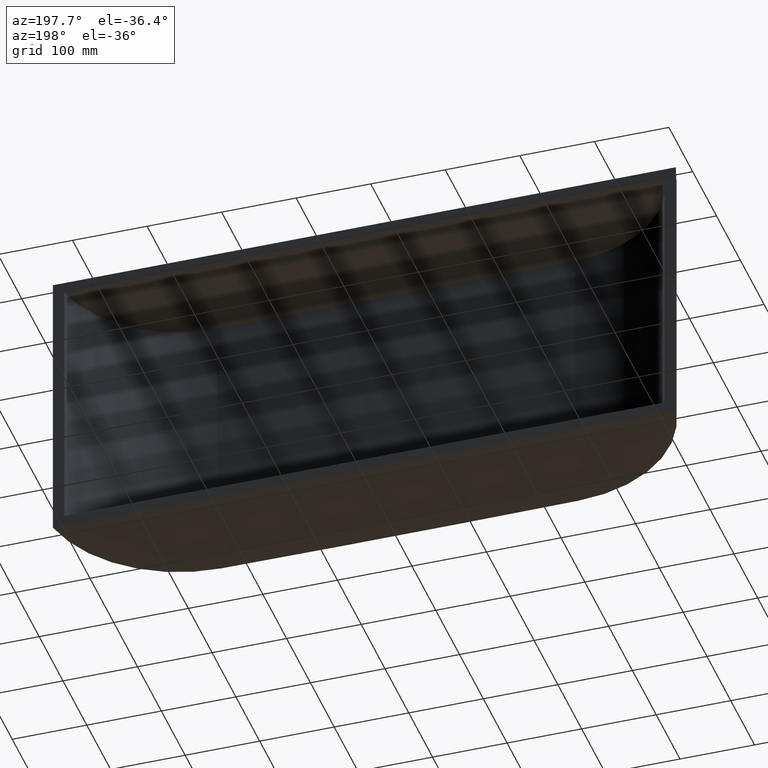
[diagram: clean part render]
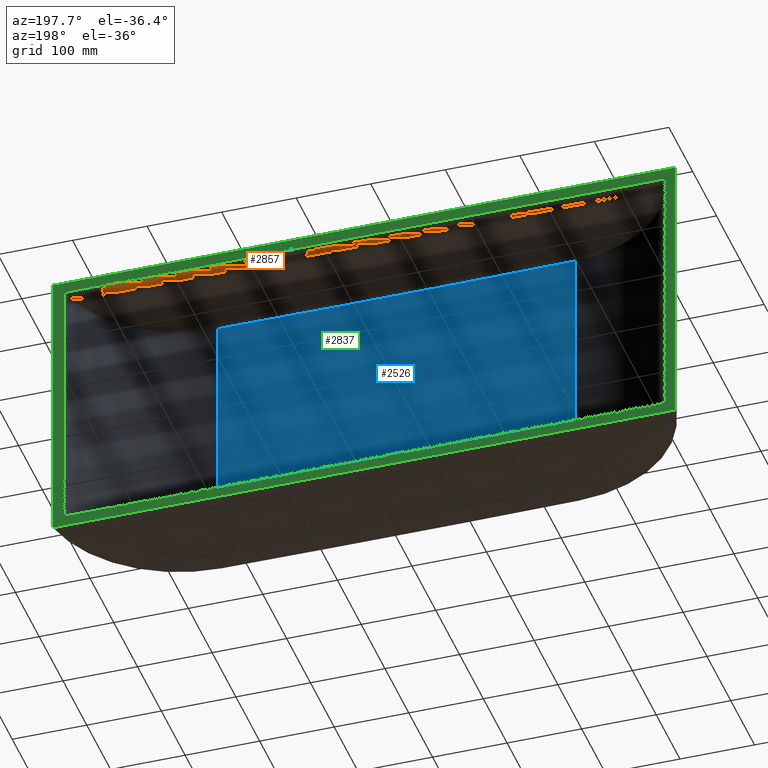
[diagram: same view with three faces highlighted in distinct colors, each labeled with its STEP entity id]
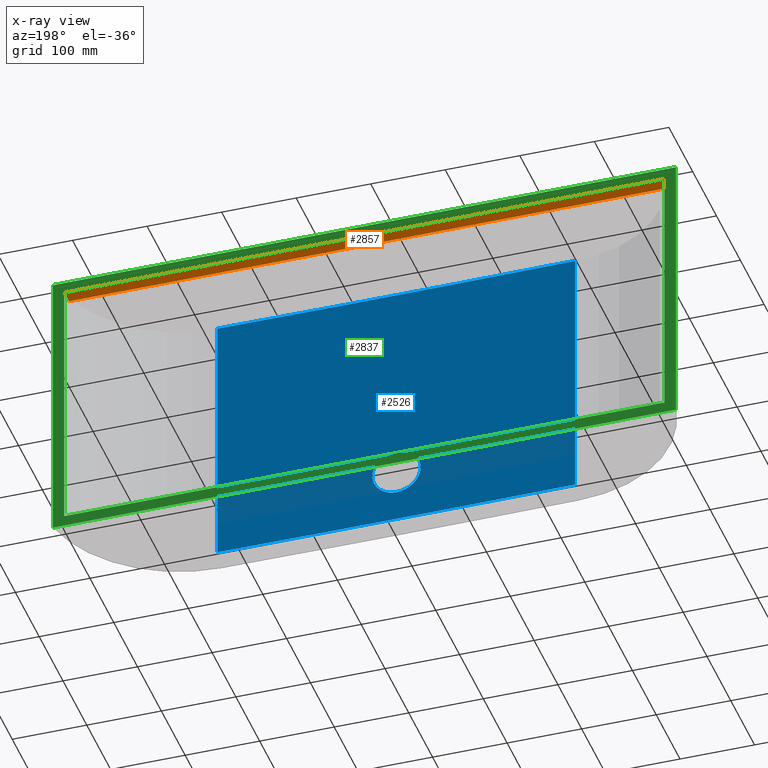
[diagram: x-ray of the same camera — body ghosted, the three highlighted faces saturated]
A machine part, auxiliary view with three faces highlighted in distinct colors.
The next image is the same camera in x-ray (body ghosted, the three faces saturated) — at least one of them is partly hidden behind the body in this view.
Their STEP definitions:

[orange] entity #2857 — the highlighted planar face has unit normal (0, 0, 1).
#7 = VECTOR ( 'NONE', #1568, 1000.000000000000000 ) ;
#31 = ORIENTED_EDGE ( 'NONE', *, *, #1319, .T. ) ;
#82 = ORIENTED_EDGE ( 'NONE', *, *, #763, .F. ) ;
#118 = VERTEX_POINT ( 'NONE', #2418 ) ;
#234 = LINE ( 'NONE', #1080, #2604 ) ;
#281 = EDGE_LOOP ( 'NONE', ( #2308, #82, #1192, #31 ) ) ;
#352 = VERTEX_POINT ( 'NONE', #2541 ) ;
#401 = VERTEX_POINT ( 'NONE', #3015 ) ;
#568 = VERTEX_POINT ( 'NONE', #744 ) ;
#629 = LINE ( 'NONE', #2582, #7 ) ;
#744 = CARTESIAN_POINT ( 'NONE',  ( -402.5000000000000000, -4.929203366568096700E-014, 280.0000000000000000 ) ) ;
#763 = EDGE_CURVE ( 'NONE', #401, #118, #2148, .T. ) ;
#831 = DIRECTION ( 'NONE',  ( -1.224646799147353200E-016, 1.000000000000000000, 0.0000000000000000000 ) ) ;
#972 = DIRECTION ( 'NONE',  ( 1.000000000000000000, 1.224646799147353200E-016, -0.0000000000000000000 ) ) ;
#1080 = CARTESIAN_POINT ( 'NONE',  ( 402.5000000000000000, 4.929203366568096700E-014, 280.0000000000000000 ) ) ;
#1086 = EDGE_CURVE ( 'NONE', #352, #401, #1480, .T. ) ;
#1131 = DIRECTION ( 'NONE',  ( 1.000000000000000000, 0.0000000000000000000, -0.0000000000000000000 ) ) ;
#1135 = DIRECTION ( 'NONE',  ( 0.0000000000000000000, 0.0000000000000000000, 1.000000000000000000 ) ) ;
#1138 = PLANE ( 'NONE',  #2563 ) ;
#1144 = CARTESIAN_POINT ( 'NONE',  ( 402.5000000000000000, -19.99999999999995000, 280.0000000000000000 ) ) ;
#1192 = ORIENTED_EDGE ( 'NONE', *, *, #1086, .F. ) ;
#1319 = EDGE_CURVE ( 'NONE', #352, #568, #629, .T. ) ;
#1480 = LINE ( 'NONE', #1546, #2302 ) ;
#1546 = CARTESIAN_POINT ( 'NONE',  ( 402.5000000000000000, -19.99999999999995000, 280.0000000000000000 ) ) ;
#1568 = DIRECTION ( 'NONE',  ( -1.224646799147353200E-016, 1.000000000000000000, 0.0000000000000000000 ) ) ;
#2148 = LINE ( 'NONE', #2542, #2855 ) ;
#2302 = VECTOR ( 'NONE', #3143, 1000.000000000000000 ) ;
#2308 = ORIENTED_EDGE ( 'NONE', *, *, #2991, .T. ) ;
#2418 = CARTESIAN_POINT ( 'NONE',  ( 402.5000000000000000, 4.929203366568096700E-014, 280.0000000000000000 ) ) ;
#2420 = FACE_OUTER_BOUND ( 'NONE', #281, .T. ) ;
#2541 = CARTESIAN_POINT ( 'NONE',  ( -402.5000000000000000, -20.00000000000005000, 280.0000000000000000 ) ) ;
#2542 = CARTESIAN_POINT ( 'NONE',  ( 402.5000000000000000, -19.99999999999995000, 280.0000000000000000 ) ) ;
#2563 = AXIS2_PLACEMENT_3D ( 'NONE', #1144, #1135, #1131 ) ;
#2582 = CARTESIAN_POINT ( 'NONE',  ( -402.5000000000000000, -20.00000000000005000, 280.0000000000000000 ) ) ;
#2604 = VECTOR ( 'NONE', #972, 1000.000000000000000 ) ;
#2855 = VECTOR ( 'NONE', #831, 1000.000000000000000 ) ;
#2857 = ADVANCED_FACE ( 'NONE', ( #2420 ), #1138, .F. ) ;
#2991 = EDGE_CURVE ( 'NONE', #568, #118, #234, .T. ) ;
#3015 = CARTESIAN_POINT ( 'NONE',  ( 402.5000000000000000, -19.99999999999995000, 280.0000000000000000 ) ) ;
#3143 = DIRECTION ( 'NONE',  ( 1.000000000000000000, 1.224646799147353200E-016, -0.0000000000000000000 ) ) ;

[blue] entity #2526 — the highlighted cylindrical surface (partial cylindrical patch) has radius 23040.6 mm, axis along (0, 0, 1).
#11 = CARTESIAN_POINT ( 'NONE',  ( -23.72226027972118300, -134.9878001514900900, 22.22925313147523600 ) ) ;
#26 = EDGE_LOOP ( 'NONE', ( #1229, #1438, #1425, #3066 ) ) ;
#169 = CARTESIAN_POINT ( 'NONE',  ( -16.27528106320144000, -134.9942707582902700, -28.14714821187567000 ) ) ;
#178 = AXIS2_PLACEMENT_3D ( 'NONE', #1301, #1022, #1153 ) ;
#193 = CARTESIAN_POINT ( 'NONE',  ( -29.14497215830472900, -134.9815678335410800, -14.36561159849149400 ) ) ;
#207 = CARTESIAN_POINT ( 'NONE',  ( -31.63890133335422300, -134.9782774210053400, 7.392398778578739300 ) ) ;
#214 = VERTEX_POINT ( 'NONE', #1422 ) ;
#220 = CARTESIAN_POINT ( 'NONE',  ( -31.96550444696222100, -134.9778264857144200, -5.818283184809496700 ) ) ;
#229 = EDGE_LOOP ( 'NONE', ( #411, #3197 ) ) ;
#246 = CARTESIAN_POINT ( 'NONE',  ( -14.37997744493682200, -134.9955315163350900, 29.16173846401359900 ) ) ;
#265 = CARTESIAN_POINT ( 'NONE',  ( 27.30056699324031700, -134.9838278556349800, 17.62298463030981200 ) ) ;
#300 = CARTESIAN_POINT ( 'NONE',  ( 26.40983583252249300, -134.9848717665731500, 18.95527456315290100 ) ) ;
#321 = CARTESIAN_POINT ( 'NONE',  ( 28.13826159352309400, -134.9828197659023800, 16.25073742154280900 ) ) ;
#366 = VERTEX_POINT ( 'NONE', #1120 ) ;
#371 = CARTESIAN_POINT ( 'NONE',  ( 23.72228203306764300, -134.9878001291653500, 22.22923008970283800 ) ) ;
#376 = CARTESIAN_POINT ( 'NONE',  ( 11.94694720479162200, -134.9969079491310400, 30.22718185101670200 ) ) ;
#411 = ORIENTED_EDGE ( 'NONE', *, *, #2245, .F. ) ;
#424 = CARTESIAN_POINT ( 'NONE',  ( 22.59846639426242000, -134.9889206439427500, 23.35373240869951400 ) ) ;
#428 = CARTESIAN_POINT ( 'NONE',  ( -13.42296732580005000, -134.9961111696425200, -29.61520084854555900 ) ) ;
#436 = CARTESIAN_POINT ( 'NONE',  ( 21.42595784349818200, -134.9900411456532700, 24.43487240134388100 ) ) ;
#451 = CARTESIAN_POINT ( 'NONE',  ( -26.40982234516385700, -134.9848717822781600, 18.95529430595993500 ) ) ;
#460 = B_SPLINE_CURVE_WITH_KNOTS ( 'NONE', 3,
 ( #1939, #1940, #1916, #1913, #1912, #1903, #1896, #1891, #2613, #3181, #376, #1887, #2123, #1874, #1878, #1881, #1886, #1883, #1873, #1075, #436, #602, #424, #371, #3219, #3189, #300, #265, #570, #321, #1864, #1865, #1868, #1300, #1296, #1295, #1291, #1290, #1281, #1275, #1271, #1269, #1268, #1260, #1258, #1256, #1252, #1249, #1244, #1243, #1239, #1237, #1235, #1234, #1230, #1226, #1223, #1222, #1218, #1216, #635, #1213, #1212, #1207, #1204, #1201, #1200, #654, #1194, #1191, #658, #1190, #1184, #1180, #1179, #1175, #1174, #1173, #1167, #1164, #1161, #1155 ),
 .UNSPECIFIED., .F., .F.,
 ( 4, 2, 2, 2, 2, 2, 2, 2, 2, 2, 2, 2, 2, 2, 2, 2, 2, 2, 2, 2, 2, 2, 2, 2, 2, 2, 2, 2, 2, 2, 2, 2, 2, 2, 2, 2, 2, 2, 2, 2, 4 ),
 ( 0.0000000000000000000, 0.01562499999999996500, 0.03124999999999993100, 0.04687499999999989600, 0.05468749999999988200, 0.06250000000000000000, 0.07812500000000009700, 0.09375000000000006900, 0.1015625000000000600, 0.1093750000000000300, 0.1171875000000000100, 0.1250000000000000000, 0.1406249999999999700, 0.1562499999999999400, 0.1640624999999999200, 0.1718749999999998900, 0.1875000000000000000, 0.2031250000000001100, 0.2109375000000000800, 0.2187500000000000600, 0.2343750000000000300, 0.2500000000000000000, 0.2578125000000000000, 0.2656249999999999400, 0.2734374999999999400, 0.2812499999999999400, 0.2968749999999998900, 0.3125000000000000000, 0.3203125000000001100, 0.3281250000000001100, 0.3437500000000000600, 0.3593750000000000600, 0.3750000000000000000, 0.3906249999999999400, 0.4062500000000000000, 0.4218750000000000600, 0.4375000000000000000, 0.4531249999999999400, 0.4687500000000000000, 0.4843750000000000600, 0.5000000000000000000 ),
 .UNSPECIFIED. ) ;
#464 = CARTESIAN_POINT ( 'NONE',  ( -32.06982978480373000, -134.9776822201169200, 5.293778648740302000 ) ) ;
#476 = CARTESIAN_POINT ( 'NONE',  ( -31.39760424577338300, -134.9786091772268200, -8.408608167358481800 ) ) ;
#486 = CARTESIAN_POINT ( 'NONE',  ( -1.073083549618927500, -135.0000000000014500, 32.50000000153362800 ) ) ;
#500 = CARTESIAN_POINT ( 'NONE',  ( -17.15431733855566100, -134.9936309831320800, 27.61974469440912100 ) ) ;
#570 = CARTESIAN_POINT ( 'NONE',  ( 27.58817145745484500, -134.9834850058226400, 17.16884452028248700 ) ) ;
#602 = CARTESIAN_POINT ( 'NONE',  ( 22.21417088295961800, -134.9892946876546500, 23.71993704726230600 ) ) ;
#611 = CARTESIAN_POINT ( 'NONE',  ( -26.42810655740830200, -134.9848506782936700, -18.92934473105804100 ) ) ;
#623 = AXIS2_PLACEMENT_3D ( 'NONE', #1042, #1039, #1038 ) ;
#635 = CARTESIAN_POINT ( 'NONE',  ( 27.60369589385710000, -134.9834722660628200, -17.16815846764348700 ) ) ;
#654 = CARTESIAN_POINT ( 'NONE',  ( 19.79368372244046300, -134.9915124258269000, -25.79236446861765200 ) ) ;
#656 = CARTESIAN_POINT ( 'NONE',  ( -10.45678433087803000, -134.9976493840536900, -30.78849187165903700 ) ) ;
#658 = CARTESIAN_POINT ( 'NONE',  ( 16.27525670284088500, -134.9942707749941900, -28.14716175778293200 ) ) ;
#679 = CARTESIAN_POINT ( 'NONE',  ( -27.58817200891021700, -134.9834850051316800, 17.16884348679722900 ) ) ;
#691 = CARTESIAN_POINT ( 'NONE',  ( -32.43308380669492400, -134.9771730457652000, 2.134058334392081600 ) ) ;
#698 = CARTESIAN_POINT ( 'NONE',  ( -30.42775617876256800, -134.9799119023342900, -11.43347345212036900 ) ) ;
#706 = CARTESIAN_POINT ( 'NONE',  ( -4.247811158615384400, -134.9996326033299600, 32.23842563340582500 ) ) ;
#716 = CARTESIAN_POINT ( 'NONE',  ( -18.91367196925033100, -134.9922410131387400, 26.42908446109616000 ) ) ;
#790 = FACE_OUTER_BOUND ( 'NONE', #26, .T. ) ;
#811 = CARTESIAN_POINT ( 'NONE',  ( -24.45450616124459100, -134.9870322140575900, -21.42037677862722600 ) ) ;
#826 = VERTEX_POINT ( 'NONE', #2508 ) ;
#852 = CARTESIAN_POINT ( 'NONE',  ( -7.405603601736354200, -134.9988333458798000, -31.66205415221567400 ) ) ;
#884 = CARTESIAN_POINT ( 'NONE',  ( -28.40110945942300100, -134.9824970002555900, 15.78642864756057700 ) ) ;
#896 = CARTESIAN_POINT ( 'NONE',  ( -32.48617660964222200, -134.9770980117903300, -0.5126074785812323500 ) ) ;
#919 = CARTESIAN_POINT ( 'NONE',  ( -7.370349586010339800, -134.9988445487641700, 31.67020109517258700 ) ) ;
#935 = CARTESIAN_POINT ( 'NONE',  ( -20.19399711782480700, -134.9911541939649500, 25.46342647313440500 ) ) ;
#1022 = DIRECTION ( 'NONE',  ( 0.0000000000000000000, 0.0000000000000000000, 1.000000000000000000 ) ) ;
#1038 = DIRECTION ( 'NONE',  ( 1.000000000000000000, 0.0000000000000000000, 0.0000000000000000000 ) ) ;
#1039 = DIRECTION ( 'NONE',  ( 0.0000000000000000000, 0.0000000000000000000, 1.000000000000000000 ) ) ;
#1042 = CARTESIAN_POINT ( 'NONE',  ( -2.793754109194857500E-012, 22905.62499999944000, 280.0000000000000000 ) ) ;
#1043 = VERTEX_POINT ( 'NONE', #1728 ) ;
#1044 = CARTESIAN_POINT ( 'NONE',  ( -6.148471680340943700E-006, -134.9999999999992900, -32.49999999999828800 ) ) ;
#1063 = CARTESIAN_POINT ( 'NONE',  ( -22.22453292191824300, -134.9892938185481300, -23.72853926095529100 ) ) ;
#1075 = CARTESIAN_POINT ( 'NONE',  ( 21.02224779688921100, -134.9904133721582300, 24.78342654279813200 ) ) ;
#1089 = CARTESIAN_POINT ( 'NONE',  ( -6.148471680340943700E-006, -134.9999999999992900, -32.49999999999828800 ) ) ;
#1115 = CARTESIAN_POINT ( 'NONE',  ( -4.269341051010516500, -134.9996292017248200, -32.23599912900754600 ) ) ;
#1120 = CARTESIAN_POINT ( 'NONE',  ( 240.0000000000007100, -133.7500000000667600, 280.0000000000000000 ) ) ;
#1130 = CARTESIAN_POINT ( 'NONE',  ( -25.77660626514818900, -134.9855910590726800, 19.80811612360720300 ) ) ;
#1140 = CARTESIAN_POINT ( 'NONE',  ( -29.60532565290622400, -134.9809833339836900, 13.42139186487778900 ) ) ;
#1152 = CARTESIAN_POINT ( 'NONE',  ( -32.42200447529960200, -134.9771884175371200, -2.105671608201074000 ) ) ;
#1153 = DIRECTION ( 'NONE',  ( 1.000000000000000000, 0.0000000000000000000, 0.0000000000000000000 ) ) ;
#1155 = CARTESIAN_POINT ( 'NONE',  ( -6.148471680340943700E-006, -134.9999999999992900, -32.49999999999828800 ) ) ;
#1161 = CARTESIAN_POINT ( 'NONE',  ( 1.067141779613067100, -135.0000000002840200, -32.50000020148622300 ) ) ;
#1164 = CARTESIAN_POINT ( 'NONE',  ( 2.133544943384039400, -134.9999259649851200, -32.44759583230450100 ) ) ;
#1167 = CARTESIAN_POINT ( 'NONE',  ( 4.269340870137668300, -134.9996292017430600, -32.23599914257391700 ) ) ;
#1171 = CARTESIAN_POINT ( 'NONE',  ( -9.930171285924881600, -134.9978658161195400, 30.94903788946612600 ) ) ;
#1173 = CARTESIAN_POINT ( 'NONE',  ( 5.324863981101804800, -134.9994081848487900, -32.07799893216947100 ) ) ;
#1174 = CARTESIAN_POINT ( 'NONE',  ( 7.405575358984898500, -134.9988333549400200, -31.66206073885679500 ) ) ;
#1175 = CARTESIAN_POINT ( 'NONE',  ( 8.431975772231767900, -134.9984793516941900, -31.40399034198093600 ) ) ;
#1179 = CARTESIAN_POINT ( 'NONE',  ( 10.45675668520702600, -134.9976493966731800, -30.78850131758247200 ) ) ;
#1180 = CARTESIAN_POINT ( 'NONE',  ( 11.45581440512863500, -134.9971729331716700, -30.43068804193839600 ) ) ;
#1183 = CARTESIAN_POINT ( 'NONE',  ( -21.42594631359029500, -134.9900411563308800, 24.43488243854569900 ) ) ;
#1184 = CARTESIAN_POINT ( 'NONE',  ( 13.42296365460544100, -134.9961111721560200, -29.61520285932462600 ) ) ;
#1190 = CARTESIAN_POINT ( 'NONE',  ( 14.39807337463441300, -134.9955205904460300, -29.15318688037238800 ) ) ;
#1191 = CARTESIAN_POINT ( 'NONE',  ( 17.18495763482578900, -134.9936080382325100, -27.60056813281046600 ) ) ;
#1194 = CARTESIAN_POINT ( 'NONE',  ( 18.94381770310328200, -134.9922290581191900, -26.42329987554356300 ) ) ;
#1198 = CIRCLE ( 'NONE', #178, 23040.62499999943600 ) ;
#1200 = CARTESIAN_POINT ( 'NONE',  ( 21.43356305423871100, -134.9900452986599900, -24.44545416733807400 ) ) ;
#1201 = CARTESIAN_POINT ( 'NONE',  ( 22.22453399826556400, -134.9892938174572000, -23.72853814729831600 ) ) ;
#1204 = CARTESIAN_POINT ( 'NONE',  ( 23.74104054591474300, -134.9877810821059800, -22.20980696055733000 ) ) ;
#1207 = CARTESIAN_POINT ( 'NONE',  ( 24.45449131570363500, -134.9870322297500400, -21.42039352262059300 ) ) ;
#1212 = CARTESIAN_POINT ( 'NONE',  ( 25.79832401252129200, -134.9855667535745700, -19.77987340860856200 ) ) ;
#1213 = CARTESIAN_POINT ( 'NONE',  ( 26.42808780377030000, -134.9848506998607700, -18.92937106919496400 ) ) ;
#1216 = CARTESIAN_POINT ( 'NONE',  ( 28.14955166606669200, -134.9828098119152200, -16.25727911577788700 ) ) ;
#1218 = CARTESIAN_POINT ( 'NONE',  ( 28.90383257461325100, -134.9818718389941200, -14.84521464008860300 ) ) ;
#1222 = CARTESIAN_POINT ( 'NONE',  ( 29.14497338616274300, -134.9815678319691300, -14.36560896017992700 ) ) ;
#1223 = CARTESIAN_POINT ( 'NONE',  ( 29.60261153456927400, -134.9809843976555900, -13.39632172644073900 ) ) ;
#1226 = CARTESIAN_POINT ( 'NONE',  ( 29.81851358590275700, -134.9807057653090400, -12.90812534653144400 ) ) ;
#1229 = ORIENTED_EDGE ( 'NONE', *, *, #2125, .F. ) ;
#1230 = CARTESIAN_POINT ( 'NONE',  ( 30.42774678694876300, -134.9799119147377600, -11.43349803347894400 ) ) ;
#1234 = CARTESIAN_POINT ( 'NONE',  ( 30.78423588079833800, -134.9794368500377000, -10.43446968613773500 ) ) ;
#1235 = CARTESIAN_POINT ( 'NONE',  ( 31.39759606453962300, -134.9786091883853200, -8.408638660723008600 ) ) ;
#1237 = CARTESIAN_POINT ( 'NONE',  ( 31.65483239949070400, -134.9782561027291800, -7.380902837363183100 ) ) ;
#1239 = CARTESIAN_POINT ( 'NONE',  ( 31.96550094082265800, -134.9778264905814100, -5.818303199677742100 ) ) ;
#1243 = CARTESIAN_POINT ( 'NONE',  ( 32.05657806398368600, -134.9776998545411600, -5.293178281325120700 ) ) ;
#1244 = CARTESIAN_POINT ( 'NONE',  ( 32.21311072050485800, -134.9774815380590400, -4.236818498181991200 ) ) ;
#1249 = CARTESIAN_POINT ( 'NONE',  ( 32.27879764160790900, -134.9773895337106100, -3.702953054065104300 ) ) ;
#1252 = CARTESIAN_POINT ( 'NONE',  ( 32.38315015239248100, -134.9772431037457900, -2.637577890542688800 ) ) ;
#1256 = CARTESIAN_POINT ( 'NONE',  ( 32.42200335901997500, -134.9771884191148100, -2.105687906700106200 ) ) ;
#1258 = CARTESIAN_POINT ( 'NONE',  ( 32.47351349441173300, -134.9771158782281500, -1.043191992647512200 ) ) ;
#1260 = CARTESIAN_POINT ( 'NONE',  ( 32.48617616732150300, -134.9770980124135600, -0.5126336680469888400 ) ) ;
#1268 = CARTESIAN_POINT ( 'NONE',  ( 32.48533574661561800, -134.9770992005506400, 1.076996046857926300 ) ) ;
#1269 = CARTESIAN_POINT ( 'NONE',  ( 32.43308600558989200, -134.9771730426668100, 2.134026484816361700 ) ) ;
#1271 = CARTESIAN_POINT ( 'NONE',  ( 32.22531062093539600, -134.9774645777114000, 4.242647380200641500 ) ) ;
#1275 = CARTESIAN_POINT ( 'NONE',  ( 32.06983440502574500, -134.9776822137235700, 5.293754951156211400 ) ) ;
#1281 = CARTESIAN_POINT ( 'NONE',  ( 31.75684787600999200, -134.9781150282087500, 6.867670831291215800 ) ) ;
#1290 = CARTESIAN_POINT ( 'NONE',  ( 31.63890159438422600, -134.9782774206431700, 7.392397248494550200 ) ) ;
#1291 = CARTESIAN_POINT ( 'NONE',  ( 31.37876578329144200, -134.9786331638360100, 8.429287193558684200 ) ) ;
#1295 = CARTESIAN_POINT ( 'NONE',  ( 31.23627434348119200, -134.9788269337934400, 8.943262578657680700 ) ) ;
#1296 = CARTESIAN_POINT ( 'NONE',  ( 30.77287282358117400, -134.9794520587993200, 10.46823536187763000 ) ) ;
#1300 = CARTESIAN_POINT ( 'NONE',  ( 30.41541281696755000, -134.9799282016837200, 11.46601594939369800 ) ) ;
#1301 = CARTESIAN_POINT ( 'NONE',  ( -2.793754109194857500E-012, 22905.62499999944000, -75.00000000000000000 ) ) ;
#1358 = CARTESIAN_POINT ( 'NONE',  ( -19.79370679874351100, -134.9915124059602900, -25.79234673718476100 ) ) ;
#1383 = CARTESIAN_POINT ( 'NONE',  ( -28.90383568689975700, -134.9818718350740300, -14.84520842869841300 ) ) ;
#1394 = CARTESIAN_POINT ( 'NONE',  ( -30.77286434540919300, -134.9794520701493600, 10.46826017509922800 ) ) ;
#1406 = CARTESIAN_POINT ( 'NONE',  ( -32.27879750834510700, -134.9773895338914300, -3.702954896604189600 ) ) ;
#1422 = CARTESIAN_POINT ( 'NONE',  ( -7.026264428347493400E-012, -134.9999999999984700, 32.49999999999886300 ) ) ;
#1425 = ORIENTED_EDGE ( 'NONE', *, *, #2232, .T. ) ;
#1429 = CARTESIAN_POINT ( 'NONE',  ( -11.44879309658584700, -134.9971611009195000, 30.41955128069586000 ) ) ;
#1438 = ORIENTED_EDGE ( 'NONE', *, *, #2804, .F. ) ;
#1444 = CARTESIAN_POINT ( 'NONE',  ( -22.59844794347022700, -134.9889206620218300, 23.35375023328055700 ) ) ;
#1458 = VERTEX_POINT ( 'NONE', #1889 ) ;
#1482 = EDGE_CURVE ( 'NONE', #2984, #214, #1954, .T. ) ;
#1628 = CARTESIAN_POINT ( 'NONE',  ( -17.18498242942572300, -134.9936080197698200, -27.60055273857066300 ) ) ;
#1657 = CARTESIAN_POINT ( 'NONE',  ( -31.37876189438026100, -134.9786331691457500, 8.429302207209712300 ) ) ;
#1666 = CARTESIAN_POINT ( 'NONE',  ( -32.05658051173330100, -134.9776998511220500, -5.293163188811396600 ) ) ;
#1688 = CARTESIAN_POINT ( 'NONE',  ( -13.42130009972680100, -134.9961118652452700, 29.61570592654899400 ) ) ;
#1728 = CARTESIAN_POINT ( 'NONE',  ( -240.0000000000119700, -133.7499999999991500, 280.0000000000000000 ) ) ;
#1864 = CARTESIAN_POINT ( 'NONE',  ( 28.40111796293350800, -134.9824969898180300, 15.78641359295230700 ) ) ;
#1865 = CARTESIAN_POINT ( 'NONE',  ( 29.15226772755354600, -134.9815628841986100, 14.37996093545598000 ) ) ;
#1868 = CARTESIAN_POINT ( 'NONE',  ( 29.60533841873768800, -134.9809833175717700, 13.42136369104544300 ) ) ;
#1873 = CARTESIAN_POINT ( 'NONE',  ( 20.19399506760822800, -134.9911541958200900, 25.46342818331297400 ) ) ;
#1874 = CARTESIAN_POINT ( 'NONE',  ( 16.24613858751878600, -134.9942912511840800, 28.16387998940107800 ) ) ;
#1877 = CARTESIAN_POINT ( 'NONE',  ( -14.39807691594447700, -134.9955205885802100, -29.15318547734838700 ) ) ;
#1878 = CARTESIAN_POINT ( 'NONE',  ( 17.15434106994343800, -134.9936309654644000, 27.61972999851596100 ) ) ;
#1881 = CARTESIAN_POINT ( 'NONE',  ( 18.47838074480830200, -134.9925944838286700, 26.73546895115612200 ) ) ;
#1883 = CARTESIAN_POINT ( 'NONE',  ( 19.77072292579929100, -134.9915215508650600, 25.79369101243117500 ) ) ;
#1886 = CARTESIAN_POINT ( 'NONE',  ( 18.91368497810670500, -134.9922410024716700, 26.42907516981578200 ) ) ;
#1887 = CARTESIAN_POINT ( 'NONE',  ( 13.42132430752961400, -134.9961118514516700, 29.61569525130733300 ) ) ;
#1889 = CARTESIAN_POINT ( 'NONE',  ( 240.0000000000007100, -133.7500000000667600, -75.00000000000000000 ) ) ;
#1891 = CARTESIAN_POINT ( 'NONE',  ( 9.930179819748291300, -134.9978658123447100, 30.94903506884963900 ) ) ;
#1896 = CARTESIAN_POINT ( 'NONE',  ( 8.399934862639506500, -134.9984913019924300, 31.41276715059027700 ) ) ;
#1902 = CARTESIAN_POINT ( 'NONE',  ( -29.60261680547945700, -134.9809843909346800, -13.39631052518342400 ) ) ;
#1903 = CARTESIAN_POINT ( 'NONE',  ( 7.370377133472506300, -134.9988445398571700, 31.67019461652707000 ) ) ;
#1912 = CARTESIAN_POINT ( 'NONE',  ( 5.294463780739453000, -134.9994150755118200, 32.08294290340325000 ) ) ;
#1913 = CARTESIAN_POINT ( 'NONE',  ( 4.247841493347309000, -134.9996325979511200, 32.23842179711213900 ) ) ;
#1915 = CARTESIAN_POINT ( 'NONE',  ( -31.75684766106860800, -134.9781150285045300, 6.867671676888376100 ) ) ;
#1916 = CARTESIAN_POINT ( 'NONE',  ( 2.137155692216438300, -134.9999250508780900, 32.44694297087532700 ) ) ;
#1926 = CARTESIAN_POINT ( 'NONE',  ( -31.65483856601316500, -134.9782560942501600, -7.380876570348712000 ) ) ;
#1928 = DIRECTION ( 'NONE',  ( 0.0000000000000000000, 0.0000000000000000000, 1.000000000000000000 ) ) ;
#1933 = CARTESIAN_POINT ( 'NONE',  ( -240.0000000000119700, -133.7499999999991500, -75.00000000000000000 ) ) ;
#1936 = CYLINDRICAL_SURFACE ( 'NONE', #3115, 23040.62499999943600 ) ;
#1939 = CARTESIAN_POINT ( 'NONE',  ( -7.026264428347493400E-012, -134.9999999999984700, 32.49999999999886300 ) ) ;
#1940 = CARTESIAN_POINT ( 'NONE',  ( 1.073083549604872700, -134.9999999999962800, 32.49999999846411200 ) ) ;
#1942 = CARTESIAN_POINT ( 'NONE',  ( -7.026264428347493400E-012, -134.9999999999984700, 32.49999999999886300 ) ) ;
#1951 = CARTESIAN_POINT ( 'NONE',  ( -16.24611087492097600, -134.9942912707048500, 28.16389594672601100 ) ) ;
#1954 = B_SPLINE_CURVE_WITH_KNOTS ( 'NONE', 3,
 ( #1044, #3215, #2978, #1115, #2678, #852, #2414, #656, #2145, #428, #1877, #169, #1628, #3207, #1358, #2919, #1063, #2626, #811, #2359, #611, #2091, #2989, #1383, #193, #1902, #2466, #698, #2183, #476, #1926, #220, #1666, #3241, #1406, #3016, #1152, #2725, #896, #2455, #691, #2174, #464, #1915, #207, #1657, #3231, #1394, #3002, #1140, #2708, #884, #2442, #679, #2165, #451, #1130, #2738, #11, #1444, #3049, #1183, #2767, #935, #2489, #716, #2214, #500, #1951, #246, #1688, #3261, #1429, #3037, #1171, #2752, #919, #2478, #706, #2200, #486, #1942 ),
 .UNSPECIFIED., .F., .F.,
 ( 4, 2, 2, 2, 2, 2, 2, 2, 2, 2, 2, 2, 2, 2, 2, 2, 2, 2, 2, 2, 2, 2, 2, 2, 2, 2, 2, 2, 2, 2, 2, 2, 2, 2, 2, 2, 2, 2, 2, 2, 4 ),
 ( 0.5000000000000000000, 0.5156250000000000000, 0.5312500000000000000, 0.5468750000000000000, 0.5625000000000000000, 0.5781250000000000000, 0.5937500000000000000, 0.6093750000000000000, 0.6250000000000000000, 0.6406250000000000000, 0.6562500000000000000, 0.6718750000000000000, 0.6796875000000000000, 0.6875000000000000000, 0.7031250000000000000, 0.7187500000000000000, 0.7265625000000000000, 0.7343750000000000000, 0.7421875000000000000, 0.7500000000000000000, 0.7656250000000000000, 0.7812500000000000000, 0.7890625000000000000, 0.7968750000000000000, 0.8125000000000000000, 0.8281250000000000000, 0.8359375000000000000, 0.8437500000000000000, 0.8593750000000000000, 0.8750000000000000000, 0.8828125000000000000, 0.8906250000000000000, 0.8984375000000000000, 0.9062500000000000000, 0.9218750000000000000, 0.9375000000000000000, 0.9453125000000000000, 0.9531250000000000000, 0.9687500000000000000, 0.9843750000000000000, 1.000000000000000000 ),
 .UNSPECIFIED. ) ;
#1979 = DIRECTION ( 'NONE',  ( 0.0000000000000000000, 0.0000000000000000000, 1.000000000000000000 ) ) ;
#2014 = CARTESIAN_POINT ( 'NONE',  ( 240.0000000000007100, -133.7500000000667600, -75.00000000000000000 ) ) ;
#2091 = CARTESIAN_POINT ( 'NONE',  ( -27.60371043037966400, -134.9834722485908900, -17.16813493286612400 ) ) ;
#2123 = CARTESIAN_POINT ( 'NONE',  ( 14.38000417636504100, -134.9955314996781500, 29.16172530945743400 ) ) ;
#2125 = EDGE_CURVE ( 'NONE', #1458, #366, #2196, .T. ) ;
#2145 = CARTESIAN_POINT ( 'NONE',  ( -11.45584026836205500, -134.9971729197352500, -30.43067780512421500 ) ) ;
#2165 = CARTESIAN_POINT ( 'NONE',  ( -27.30056473010614900, -134.9838278583349900, 17.62298823253817300 ) ) ;
#2174 = CARTESIAN_POINT ( 'NONE',  ( -32.22530718599178100, -134.9774645825165500, 4.242672706312133900 ) ) ;
#2183 = CARTESIAN_POINT ( 'NONE',  ( -30.78424563160576000, -134.9794368369943800, -10.43444095284920100 ) ) ;
#2191 = CIRCLE ( 'NONE', #623, 23040.62499999943600 ) ;
#2196 = LINE ( 'NONE', #2014, #2572 ) ;
#2200 = CARTESIAN_POINT ( 'NONE',  ( -2.137135056992845300, -134.9999250525658300, 32.44694417009947800 ) ) ;
#2214 = CARTESIAN_POINT ( 'NONE',  ( -18.47836273537902600, -134.9925944983883400, 26.73548155593034900 ) ) ;
#2232 = EDGE_CURVE ( 'NONE', #826, #1043, #2260, .T. ) ;
#2245 = EDGE_CURVE ( 'NONE', #214, #2984, #460, .T. ) ;
#2260 = LINE ( 'NONE', #1933, #2603 ) ;
#2322 = DIRECTION ( 'NONE',  ( 1.000000000000000000, 0.0000000000000000000, 0.0000000000000000000 ) ) ;
#2359 = CARTESIAN_POINT ( 'NONE',  ( -25.79834315771451600, -134.9855667321957400, -19.77984865741174000 ) ) ;
#2414 = CARTESIAN_POINT ( 'NONE',  ( -8.432006755535194700, -134.9984793402839800, -31.40398196598785000 ) ) ;
#2442 = CARTESIAN_POINT ( 'NONE',  ( -28.13825380936203800, -134.9828197753398300, 16.25075052592340100 ) ) ;
#2455 = CARTESIAN_POINT ( 'NONE',  ( -32.48533481738402200, -134.9770992018656300, 1.077027725770018000 ) ) ;
#2466 = CARTESIAN_POINT ( 'NONE',  ( -29.81851965236874200, -134.9807057574880700, -12.90811159268841600 ) ) ;
#2478 = CARTESIAN_POINT ( 'NONE',  ( -5.294432137866230000, -134.9994150828774800, 32.08294819336143900 ) ) ;
#2489 = CARTESIAN_POINT ( 'NONE',  ( -19.77071555494026000, -134.9915215572998200, 25.79369683069130700 ) ) ;
#2508 = CARTESIAN_POINT ( 'NONE',  ( -240.0000000000119700, -133.7499999999991500, -75.00000000000000000 ) ) ;
#2526 = ADVANCED_FACE ( 'NONE', ( #2790, #790 ), #1936, .F. ) ;
#2572 = VECTOR ( 'NONE', #1979, 1000.000000000000000 ) ;
#2603 = VECTOR ( 'NONE', #1928, 1000.000000000000000 ) ;
#2613 = CARTESIAN_POINT ( 'NONE',  ( 10.43886465249533500, -134.9976408023691200, 30.78105738317485100 ) ) ;
#2620 = CARTESIAN_POINT ( 'NONE',  ( -2.793754109194857500E-012, 22905.62499999944000, -75.00000000000000000 ) ) ;
#2626 = CARTESIAN_POINT ( 'NONE',  ( -23.74104562565593900, -134.9877810770241800, -22.20980183769621900 ) ) ;
#2650 = DIRECTION ( 'NONE',  ( 0.0000000000000000000, 0.0000000000000000000, 1.000000000000000000 ) ) ;
#2678 = CARTESIAN_POINT ( 'NONE',  ( -5.324884297556827100, -134.9994081805014300, -32.07799581191982700 ) ) ;
#2708 = CARTESIAN_POINT ( 'NONE',  ( -29.15225600120294300, -134.9815628990586700, 14.37998461850513900 ) ) ;
#2725 = CARTESIAN_POINT ( 'NONE',  ( -32.47351430686691000, -134.9771158770921300, -1.043168506515012500 ) ) ;
#2738 = CARTESIAN_POINT ( 'NONE',  ( -24.43277076113365000, -134.9870552744178800, 21.44512242910709400 ) ) ;
#2752 = CARTESIAN_POINT ( 'NONE',  ( -8.399911484116735500, -134.9984913109784400, 31.41277376959683600 ) ) ;
#2767 = CARTESIAN_POINT ( 'NONE',  ( -21.02223791448691900, -134.9904133810174800, 24.78343468314349400 ) ) ;
#2790 = FACE_BOUND ( 'NONE', #229, .T. ) ;
#2804 = EDGE_CURVE ( 'NONE', #826, #1458, #1198, .T. ) ;
#2919 = CARTESIAN_POINT ( 'NONE',  ( -21.43357874202774500, -134.9900452838383600, -24.44544005970512000 ) ) ;
#2978 = CARTESIAN_POINT ( 'NONE',  ( -2.133548268178139900, -134.9999259645126700, -32.44759549855349000 ) ) ;
#2984 = VERTEX_POINT ( 'NONE', #1089 ) ;
#2989 = CARTESIAN_POINT ( 'NONE',  ( -28.14956324702139400, -134.9828097976216000, -16.25725819976019400 ) ) ;
#3002 = CARTESIAN_POINT ( 'NONE',  ( -30.41540179589151500, -134.9799282162499600, 11.46604519203401100 ) ) ;
#3016 = CARTESIAN_POINT ( 'NONE',  ( -32.38315154283802900, -134.9772431017968900, -2.637563216103505900 ) ) ;
#3037 = CARTESIAN_POINT ( 'NONE',  ( -10.43886687440638300, -134.9976408013038500, 30.78105658355873700 ) ) ;
#3049 = CARTESIAN_POINT ( 'NONE',  ( -22.21415421448793700, -134.9892947036838400, 23.71995258690210700 ) ) ;
#3058 = EDGE_CURVE ( 'NONE', #1043, #366, #2191, .T. ) ;
#3066 = ORIENTED_EDGE ( 'NONE', *, *, #3058, .T. ) ;
#3115 = AXIS2_PLACEMENT_3D ( 'NONE', #2620, #2650, #2322 ) ;
#3181 = CARTESIAN_POINT ( 'NONE',  ( 11.44880008019782900, -134.9971610975971400, 30.41954877662408300 ) ) ;
#3189 = CARTESIAN_POINT ( 'NONE',  ( 25.77662249425011600, -134.9855910408431600, 19.80809483974020700 ) ) ;
#3197 = ORIENTED_EDGE ( 'NONE', *, *, #1482, .F. ) ;
#3207 = CARTESIAN_POINT ( 'NONE',  ( -18.94384391435313800, -134.9922290365888400, -26.42328112969631700 ) ) ;
#3215 = CARTESIAN_POINT ( 'NONE',  ( -1.067154076558515700, -134.9999999997170300, -32.49999979851038000 ) ) ;
#3219 = CARTESIAN_POINT ( 'NONE',  ( 24.43279198901331400, -134.9870552518313200, 21.44509808433677700 ) ) ;
#3231 = CARTESIAN_POINT ( 'NONE',  ( -31.23626929328882400, -134.9788269406568600, 8.943280746569062200 ) ) ;
#3241 = CARTESIAN_POINT ( 'NONE',  ( -32.21311133790612800, -134.9774815371924300, -4.236812901587621000 ) ) ;
#3261 = CARTESIAN_POINT ( 'NONE',  ( -11.94693534069471900, -134.9969079551771400, 30.22718645173098700 ) ) ;

[green] entity #2837 — the highlighted planar face has unit normal (-0, 1, 0).
#10 = ORIENTED_EDGE ( 'NONE', *, *, #365, .F. ) ;
#20 = VERTEX_POINT ( 'NONE', #3119 ) ;
#27 = LINE ( 'NONE', #1108, #2782 ) ;
#29 = EDGE_CURVE ( 'NONE', #20, #2840, #2372, .T. ) ;
#70 = VECTOR ( 'NONE', #1019, 1000.000000000000000 ) ;
#84 = LINE ( 'NONE', #2781, #664 ) ;
#135 = VERTEX_POINT ( 'NONE', #2263 ) ;
#145 = EDGE_CURVE ( 'NONE', #190, #1932, #1499, .T. ) ;
#181 = LINE ( 'NONE', #1015, #70 ) ;
#189 = ORIENTED_EDGE ( 'NONE', *, *, #29, .T. ) ;
#190 = VERTEX_POINT ( 'NONE', #1934 ) ;
#194 = EDGE_CURVE ( 'NONE', #20, #135, #2393, .T. ) ;
#365 = EDGE_CURVE ( 'NONE', #527, #1932, #2900, .T. ) ;
#523 = VECTOR ( 'NONE', #3256, 1000.000000000000000 ) ;
#527 = VERTEX_POINT ( 'NONE', #2531 ) ;
#617 = DIRECTION ( 'NONE',  ( -1.000000000000000000, -1.224646799147353200E-016, -0.0000000000000000000 ) ) ;
#631 = CARTESIAN_POINT ( 'NONE',  ( -402.5000000000000000, 0.0000000000000000000, -75.00000000000000000 ) ) ;
#633 = EDGE_CURVE ( 'NONE', #2840, #2929, #1289, .T. ) ;
#650 = CARTESIAN_POINT ( 'NONE',  ( -402.5000000000000000, 0.0000000000000000000, 280.0000000000000000 ) ) ;
#664 = VECTOR ( 'NONE', #1460, 1000.000000000000000 ) ;
#719 = ORIENTED_EDGE ( 'NONE', *, *, #2872, .F. ) ;
#975 = FACE_OUTER_BOUND ( 'NONE', #1372, .T. ) ;
#1012 = CARTESIAN_POINT ( 'NONE',  ( 402.5000000000000000, 9.858406733136193300E-014, -75.00000000000000000 ) ) ;
#1015 = CARTESIAN_POINT ( 'NONE',  ( 402.5000000000000000, 9.858406733136193300E-014, -75.00000000000000000 ) ) ;
#1019 = DIRECTION ( 'NONE',  ( 0.0000000000000000000, 0.0000000000000000000, 1.000000000000000000 ) ) ;
#1070 = VECTOR ( 'NONE', #617, 1000.000000000000000 ) ;
#1104 = CARTESIAN_POINT ( 'NONE',  ( -417.7905297708493900, -1.872549834113797300E-015, 295.0000000000000600 ) ) ;
#1107 = DIRECTION ( 'NONE',  ( -1.000000000000000000, -1.224646799147353200E-016, 0.0000000000000000000 ) ) ;
#1108 = CARTESIAN_POINT ( 'NONE',  ( -238.2529469721367500, 2.081668171172168500E-014, 295.0000000000000600 ) ) ;
#1187 = DIRECTION ( 'NONE',  ( -1.224646799147353200E-016, 1.000000000000000000, 0.0000000000000000000 ) ) ;
#1215 = DIRECTION ( 'NONE',  ( -1.000000000000000000, -1.224646799147353200E-016, 0.0000000000000000000 ) ) ;
#1248 = ORIENTED_EDGE ( 'NONE', *, *, #3170, .T. ) ;
#1283 = EDGE_LOOP ( 'NONE', ( #10, #2250, #1248, #1879 ) ) ;
#1289 = LINE ( 'NONE', #2732, #523 ) ;
#1304 = CARTESIAN_POINT ( 'NONE',  ( -402.5000000000000000, 0.0000000000000000000, -75.00000000000000000 ) ) ;
#1305 = CARTESIAN_POINT ( 'NONE',  ( -417.7905297708493900, -1.872549834113797300E-015, -90.00000000000000000 ) ) ;
#1318 = PLANE ( 'NONE',  #2606 ) ;
#1359 = VECTOR ( 'NONE', #2342, 1000.000000000000000 ) ;
#1372 = EDGE_LOOP ( 'NONE', ( #2381, #719, #1556, #189 ) ) ;
#1460 = DIRECTION ( 'NONE',  ( -1.000000000000000000, -1.224646799147353200E-016, -0.0000000000000000000 ) ) ;
#1499 = LINE ( 'NONE', #650, #1070 ) ;
#1556 = ORIENTED_EDGE ( 'NONE', *, *, #194, .F. ) ;
#1698 = VECTOR ( 'NONE', #3018, 1000.000000000000000 ) ;
#1770 = VECTOR ( 'NONE', #3233, 1000.000000000000000 ) ;
#1780 = EDGE_CURVE ( 'NONE', #3179, #527, #84, .T. ) ;
#1879 = ORIENTED_EDGE ( 'NONE', *, *, #145, .T. ) ;
#1932 = VERTEX_POINT ( 'NONE', #2405 ) ;
#1934 = CARTESIAN_POINT ( 'NONE',  ( 402.5000000000000000, 9.858406733136193300E-014, 280.0000000000000000 ) ) ;
#2250 = ORIENTED_EDGE ( 'NONE', *, *, #1780, .F. ) ;
#2263 = CARTESIAN_POINT ( 'NONE',  ( 417.7905297708493900, 1.004566171654757300E-013, 295.0000000000000600 ) ) ;
#2342 = DIRECTION ( 'NONE',  ( -1.000000000000000000, -1.224646799147353200E-016, 0.0000000000000000000 ) ) ;
#2372 = LINE ( 'NONE', #3224, #1359 ) ;
#2381 = ORIENTED_EDGE ( 'NONE', *, *, #633, .T. ) ;
#2393 = LINE ( 'NONE', #3246, #1770 ) ;
#2405 = CARTESIAN_POINT ( 'NONE',  ( -402.5000000000000000, 0.0000000000000000000, 280.0000000000000000 ) ) ;
#2531 = CARTESIAN_POINT ( 'NONE',  ( -402.5000000000000000, 0.0000000000000000000, -75.00000000000000000 ) ) ;
#2606 = AXIS2_PLACEMENT_3D ( 'NONE', #1304, #1187, #1215 ) ;
#2732 = CARTESIAN_POINT ( 'NONE',  ( -417.7905297708493900, -1.872549834113797300E-015, -90.00000000000000000 ) ) ;
#2781 = CARTESIAN_POINT ( 'NONE',  ( -402.5000000000000000, 0.0000000000000000000, -75.00000000000000000 ) ) ;
#2782 = VECTOR ( 'NONE', #1107, 1000.000000000000000 ) ;
#2837 = ADVANCED_FACE ( 'NONE', ( #2936, #975 ), #1318, .T. ) ;
#2840 = VERTEX_POINT ( 'NONE', #1305 ) ;
#2872 = EDGE_CURVE ( 'NONE', #135, #2929, #27, .T. ) ;
#2900 = LINE ( 'NONE', #631, #1698 ) ;
#2929 = VERTEX_POINT ( 'NONE', #1104 ) ;
#2936 = FACE_BOUND ( 'NONE', #1283, .T. ) ;
#3018 = DIRECTION ( 'NONE',  ( 0.0000000000000000000, 0.0000000000000000000, 1.000000000000000000 ) ) ;
#3119 = CARTESIAN_POINT ( 'NONE',  ( 417.7905297708493900, 1.004566171654757300E-013, -90.00000000000000000 ) ) ;
#3170 = EDGE_CURVE ( 'NONE', #3179, #190, #181, .T. ) ;
#3179 = VERTEX_POINT ( 'NONE', #1012 ) ;
#3224 = CARTESIAN_POINT ( 'NONE',  ( -238.2529469721367500, 2.081668171172168500E-014, -90.00000000000000000 ) ) ;
#3233 = DIRECTION ( 'NONE',  ( 0.0000000000000000000, 0.0000000000000000000, 1.000000000000000000 ) ) ;
#3246 = CARTESIAN_POINT ( 'NONE',  ( 417.7905297708493900, 1.004566171654757300E-013, -90.00000000000000000 ) ) ;
#3256 = DIRECTION ( 'NONE',  ( 0.0000000000000000000, 0.0000000000000000000, 1.000000000000000000 ) ) ;